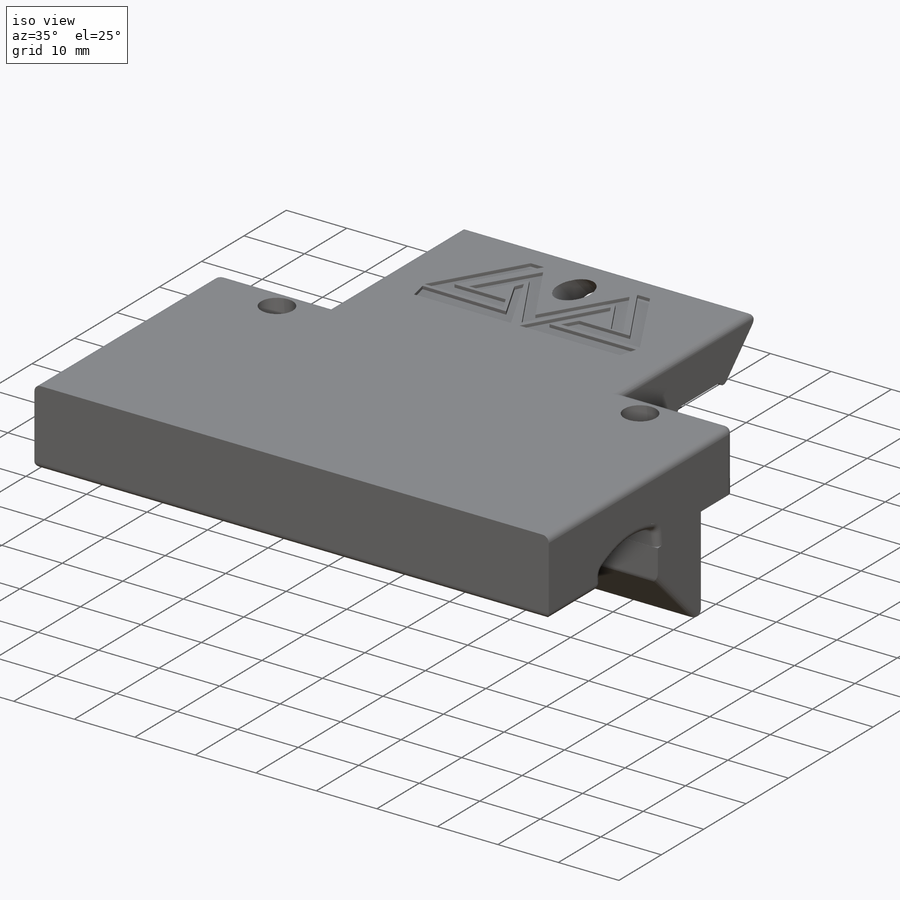
[diagram: iso view]
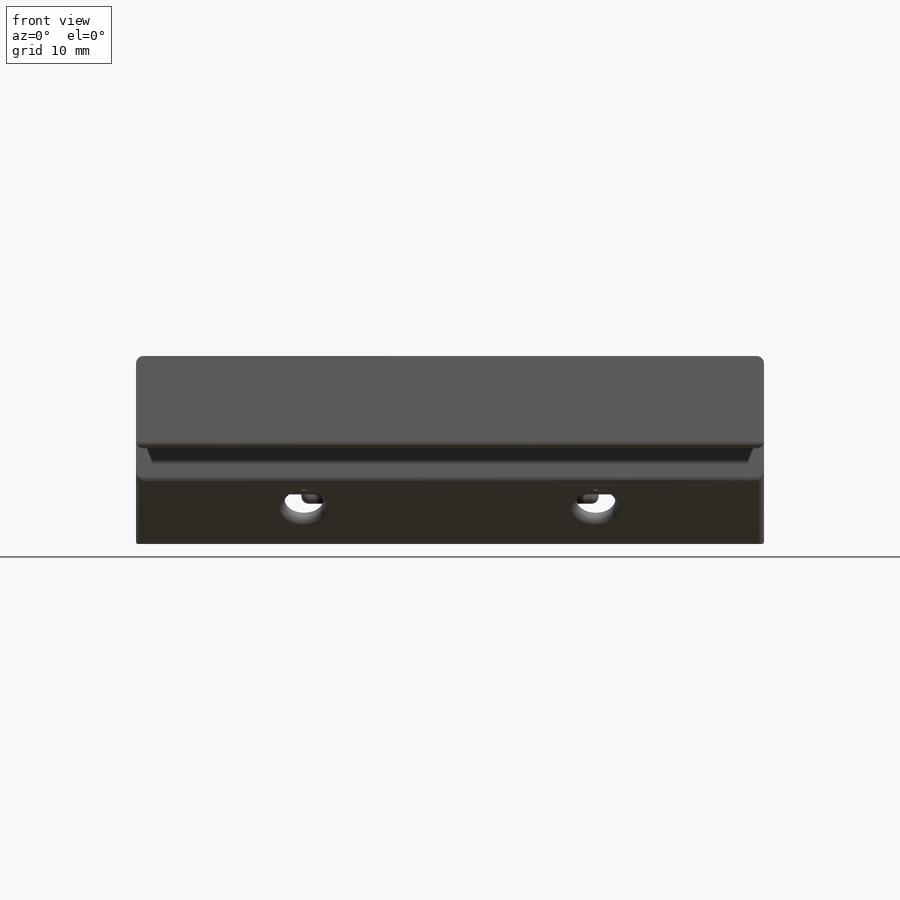
[diagram: front view]
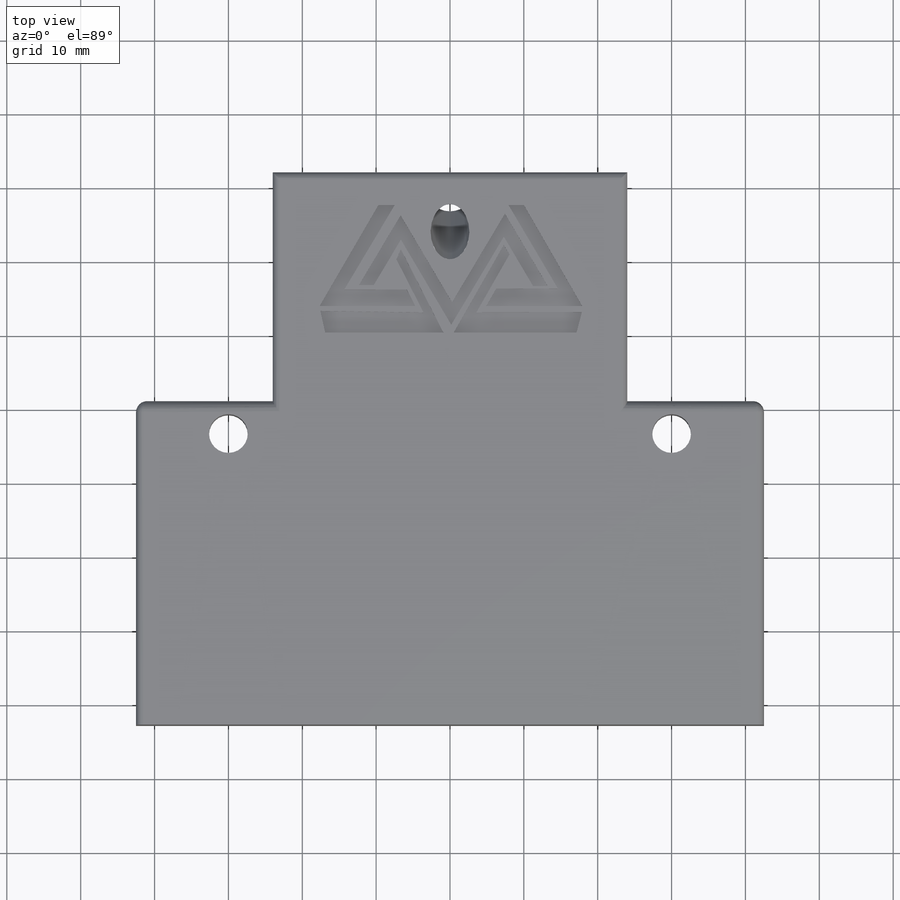
[diagram: top view]
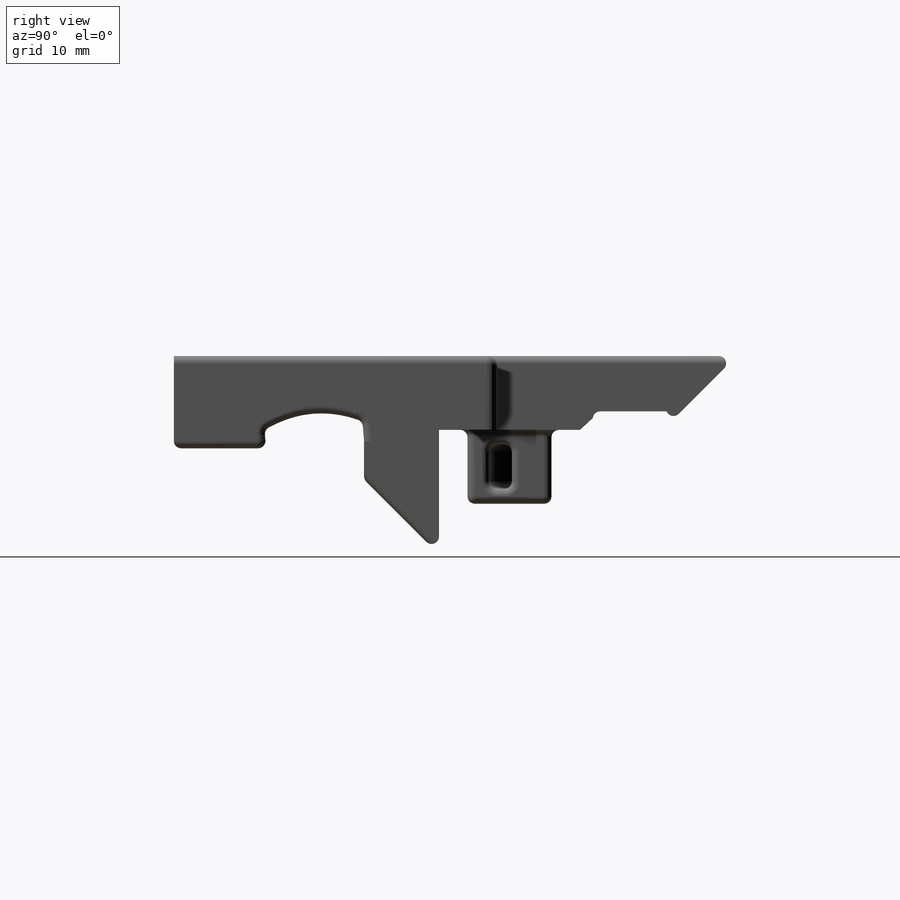
[diagram: right view]
SOLIDWORKS PART (.sldprt)
format: sldprt  version: not decoded by parser v0  size: 1,210,368 bytes
history: native  units: mm
features: sketch x37, cut_extrude x29, fillet x8, extrude x4, chamfer x2, cut_revolve x2, material x1, plane x1 (+13 scaffold rows collapsed)
feature tree (97):
  scaffold x13  (default folders/planes/origin — collapsed)
  material  "Material <not specified>"
  sketch  "Sketch1"  dims[D1=85.0mm D2=86.0mm D3=18.5mm D4=18.5mm D5=42.2mm D6=42.2mm]
  extrude  "Main Carriage Body"  Depth=35mm
  sketch  "Sketch2"  dims[D1=10.0mm]
  sketch  "Sketch3"  dims[D1=10.0mm D2=10.0mm D3=10.0mm D4=10.0mm D5=25.0mm]
  cut_extrude  "Cut-Extrude2"  [1 undecoded]
  sketch  "Sketch4"  dims[D1=10.0mm D2=5.0mm D3=5.0mm]
  cut_extrude  "Cut-Extrude3"  [1 undecoded]
  sketch  "Sketch5"
  cut_extrude  "Cut-Extrude4"  [1 undecoded]
  sketch  "Sketch6"  dims[D1=10.0mm D2=45.0mm]
  sketch  "Sketch7"  dims[D1=5.0mm]
  extrude  "Boss-Extrude3"  Depth=25mm
  sketch  "Sketch8"  dims[c1.D1=~8.407507mm c2.D1=45.0deg c2.D2=14.0mm]
  cut_extrude  "Cut-Extrude5"  [1 undecoded]
  sketch  "Sketch9"  dims[c1.D1=5.3mm c1.D2=5.3mm c1.D3=2.5mm c1.D4=21.25mm c1.D5=21.25mm c1.D6=42.5mm c2.D1=39.5mm]
  cut_extrude  "Bottom M5 Bearing Holes"  Depth=12.5mm
  sketch  "Sketch10"  dims[c1.D1=15.0mm c1.D2=~21.917346mm c2.D2=~46.81239deg c2.D1=~21.917346mm c3.D1=45.0deg c3.D2=16.0mm]
  cut_extrude  "Cut-Extrude8"  [1 undecoded]
  sketch  "Sketch11"  dims[D1=5.3mm D2=5.3mm D3=5.0mm D4=5.0mm]
  cut_extrude  "Top M5 Bearing Holes"  [1 undecoded]
  sketch  "Sketch12"  dims[D1=5.0mm]
  cut_extrude  "Cut-Extrude10"  [1 undecoded]
  sketch  "Sketch13"
  extrude  "Boss-Extrude5"  Depth=1.5mm
  sketch  "Sketch14"
  cut_extrude  "Cut-Extrude11"  [1 undecoded]
  plane  "Bottom N.T. Plane"
  sketch  "Sketch15"  dims[D1=8.25mm D2=8.25mm D3=4.25mm D4=4.25mm D5=4.0mm D6=4.0mm]
  cut_extrude  "Bottom N.T. Cut"  Depth=18mm
  chamfer  "Chamfer1"  Distance=1mm
  sketch  "Sketch24"  dims[c1.D1=~15.826805mm c2.D1=5.0deg c2.D2=~8.73013mm c3.D2=~3.778377deg c3.D3=~8.73013mm c3.D4=~15.887261mm c3.D1=8.5mm c4.D2=~15.86886mm c5.D2=~4.172232deg c5.D1=~15.86886mm c6.D1=5.0deg]
  sketch  "Sketch25"  dims[c1.D1=12.5mm c2.D1=5.0deg]
  cut_extrude  "Cut-Extrude19"  [1 undecoded]
  cut_extrude  "Cut-Extrude20"  [1 undecoded]
  fillet  "Fillet2"  Radius=1mm
  sketch  "Sketch26"  dims[D1=0.75mm]
  cut_extrude  "Cut-Extrude21"  [1 undecoded]
  sketch  "Sketch27"  dims[D1=1.0mm]
  cut_extrude  "Cut-Extrude22"  [1 undecoded]
  sketch  "Sketch28"  dims[D1=1.0mm]
  cut_extrude  "Cut-Extrude23"  [1 undecoded]
  sketch  "Sketch30"  dims[c1.D1=~14.528491mm c2.D1=~1.443554deg c3.D1=2.0mm c3.D2=2.0mm]
  cut_extrude  "Cut-Extrude24"  [1 undecoded]
  sketch  "Sketch31"
  cut_extrude  "Cut-Extrude25"  Depth=15mm
  fillet  "Fillet3"  Radius=1mm
  sketch  "Sketch33"
  cut_extrude  "Cut-Extrude27"  [1 undecoded]
  sketch  "Sketch34"
  cut_extrude  "Cut-Extrude28"  [1 undecoded]
  sketch  "Sketch40"  dims[c1.D1=2.0mm c1.D2=2.0mm c1.D3=1.5mm c1.D4=1.5mm c1.D5=1.4mm c1.D6=~11.422376mm c2.D6=~0.740927deg c3.D6=~11.422376mm c4.D6=~0.740927deg c5.D6=1.0mm]
  sketch  "Sketch47"  dims[D1=10.0mm D2=10.0mm D3=48.1mm]
  cut_extrude  "Cut-Extrude39"  Depth=2.5mm
  fillet  "Fillet15"  Radius=1mm
  chamfer  "Chamfer2"  Distance=1.75mm Angle=45deg
  cut_extrude  "Cut-Extrude41"  Depth=0.5mm
  sketch  "Sketch50"
  cut_extrude  "Cut-Extrude45"  Depth=2.5mm
  sketch  "Sketch51"  dims[D1=5.25mm]
  cut_extrude  "Cut-Extrude46"  [1 undecoded]
  sketch  "Sketch52"  dims[D1=1.5mm]
  cut_extrude  "Cut-Extrude47"  [1 undecoded]
  sketch  "Sketch53"
  cut_extrude  "Cut-Extrude48"  [1 undecoded]
  sketch  "Sketch54"  dims[D1=1.0mm]
  cut_extrude  "Cut-Extrude49"  [1 undecoded]
  fillet  "Fillet16"  Radius=1mm
  fillet  "Fillet17"  Radius=1mm
  sketch  "Sketch55"  dims[D3=5.25mm D4=5.25mm D1=3.5mm D2=60.0mm]
  cut_extrude  "Cut-Extrude51"  [1 undecoded]
  sketch  "Sketch57"
  extrude  "Boss-Extrude6"  Depth=10mm
  sketch  "Sketch58"  dims[D1=7.0mm D2=6.0mm D3=3.0mm]
  cut_revolve  "Cut-Revolve1"  Angle=360deg
  sketch  "Sketch59"  dims[D1=7.0mm D2=6.0mm D3=3.0mm]
  cut_revolve  "Cut-Revolve2"  Angle=360deg
  fillet  "Fillet19"  Radius=1mm
  sketch  "Sketch60"  dims[D1=3.25mm]
  cut_extrude  "Cut-Extrude52"  Depth=11mm
  sketch  "Sketch61"  dims[D1=6.0mm D2=3.0mm]
  cut_extrude  "Cut-Extrude53"  Depth=9mm
  fillet  "Fillet22"  Radius=1.5mm
  fillet  "Fillet23"  Radius=1.5mm
decode coverage: 52 of 82 modeling features carry decoded parameters
note: ~ marks probable driven/reference dimensions
note: 21 parameter values undecoded
summary: no parameter record found for 21 features
note: suppression state not decoded; provenance and decode notes live in map.json
